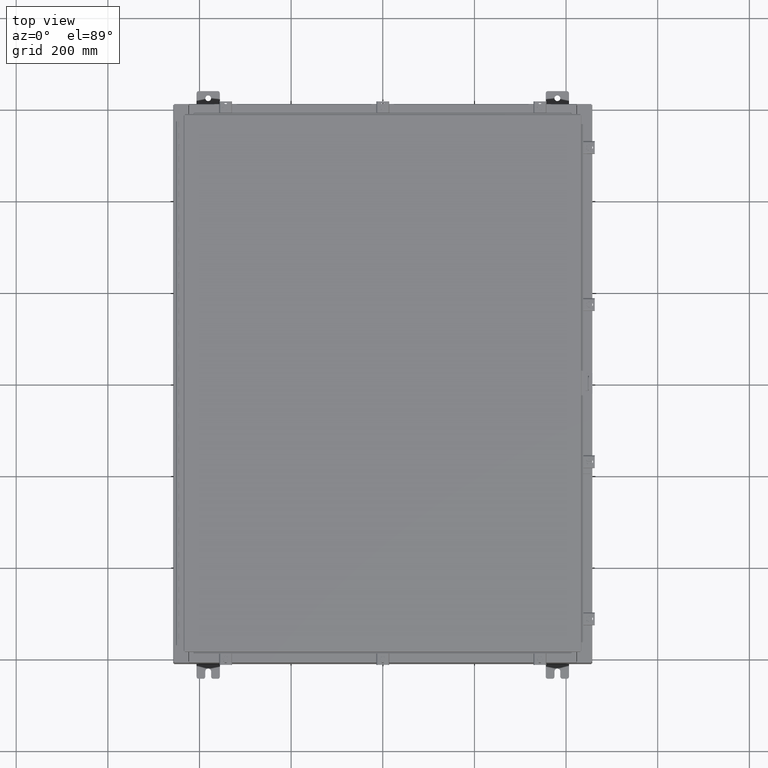
[diagram: clean part render]
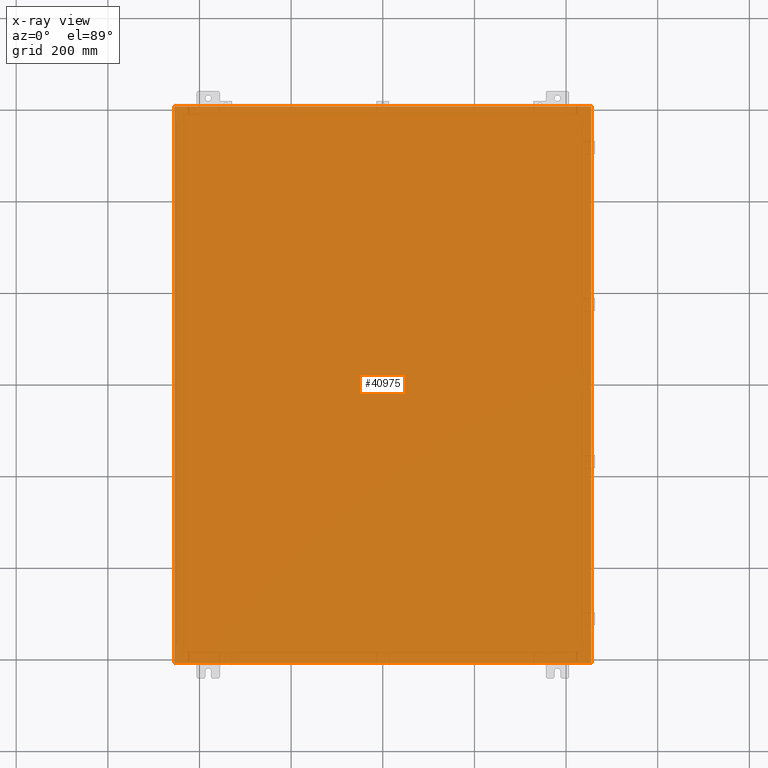
[diagram: x-ray — body ghosted, one internal face saturated and labeled with its STEP entity id]
A machine part, top view, then the same camera in x-ray: the body is ghosted and one INTERNAL B-rep face — a face not visible from any outside direction — is saturated and labeled: STEP entity #40975.
In plain terms, the highlighted planar face has unit normal (0, 0, -1).
Its self-contained STEP definition (entity closure, byte-faithful):
#805 = VECTOR ( 'NONE', #17746, 39.37007874015748100 ) ;
#1038 = VERTEX_POINT ( 'NONE', #12875 ) ;
#2107 = LINE ( 'NONE', #13534, #805 ) ;
#4765 = VERTEX_POINT ( 'NONE', #40581 ) ;
#5103 = CARTESIAN_POINT ( 'NONE',  ( -17.91230000000000500, -23.92529999999998900, 4.481938114605432000E-017 ) ) ;
#7347 = VERTEX_POINT ( 'NONE', #25794 ) ;
#9525 = CARTESIAN_POINT ( 'NONE',  ( -17.91230000000000500, -23.92529999999998600, 4.481938114605432000E-017 ) ) ;
#10195 = FACE_OUTER_BOUND ( 'NONE', #17727, .T. ) ;
#11599 = DIRECTION ( 'NONE',  ( 0.0000000000000000000, 0.0000000000000000000, -1.000000000000000000 ) ) ;
#12875 = CARTESIAN_POINT ( 'NONE',  ( -17.91230000000000500, 23.92529999999998900, 4.481938114605432000E-017 ) ) ;
#13463 = CARTESIAN_POINT ( 'NONE',  ( -18.00000000000000400, 23.92530000000000000, 0.0000000000000000000 ) ) ;
#13534 = CARTESIAN_POINT ( 'NONE',  ( 17.91229999999999500, 23.92529999999998900, 3.103208580302999200E-015 ) ) ;
#14136 = VECTOR ( 'NONE', #34222, 39.37007874015748100 ) ;
#15010 = VECTOR ( 'NONE', #23423, 39.37007874015748100 ) ;
#15604 = EDGE_CURVE ( 'NONE', #4765, #7347, #2107, .T. ) ;
#17682 = DIRECTION ( 'NONE',  ( -1.000000000000000000, -0.0000000000000000000, -0.0000000000000000000 ) ) ;
#17727 = EDGE_LOOP ( 'NONE', ( #41216, #49650, #39022, #21705 ) ) ;
#17746 = DIRECTION ( 'NONE',  ( -0.0000000000000000000, -1.000000000000000000, -8.208677865577646300E-017 ) ) ;
#21705 = ORIENTED_EDGE ( 'NONE', *, *, #47345, .T. ) ;
#23423 = DIRECTION ( 'NONE',  ( 1.000000000000000000, 1.214154663850783700E-016, 0.0000000000000000000 ) ) ;
#23903 = LINE ( 'NONE', #5103, #14136 ) ;
#24051 = AXIS2_PLACEMENT_3D ( 'NONE', #36551, #11599, #40751 ) ;
#25794 = CARTESIAN_POINT ( 'NONE',  ( 17.91229999999999500, -23.92529999999998900, -8.238229105893793900E-016 ) ) ;
#28159 = PLANE ( 'NONE',  #24051 ) ;
#29529 = VECTOR ( 'NONE', #17682, 39.37007874015748100 ) ;
#30835 = LINE ( 'NONE', #13463, #29529 ) ;
#32332 = EDGE_CURVE ( 'NONE', #46849, #1038, #23903, .T. ) ;
#34222 = DIRECTION ( 'NONE',  ( -0.0000000000000000000, 1.000000000000000000, -0.0000000000000000000 ) ) ;
#35991 = CARTESIAN_POINT ( 'NONE',  ( -18.00000000000000400, -23.92530000000000400, 0.0000000000000000000 ) ) ;
#36551 = CARTESIAN_POINT ( 'NONE',  ( 0.0000000000000000000, 0.0000000000000000000, 0.0000000000000000000 ) ) ;
#37962 = EDGE_CURVE ( 'NONE', #46849, #7347, #48240, .T. ) ;
#39022 = ORIENTED_EDGE ( 'NONE', *, *, #15604, .F. ) ;
#40581 = CARTESIAN_POINT ( 'NONE',  ( 17.91229999999999500, 23.92529999999998600, 3.103208580302999200E-015 ) ) ;
#40751 = DIRECTION ( 'NONE',  ( -1.000000000000000000, 0.0000000000000000000, -0.0000000000000000000 ) ) ;
#40975 = ADVANCED_FACE ( 'NONE', ( #10195 ), #28159, .F. ) ;
#41216 = ORIENTED_EDGE ( 'NONE', *, *, #32332, .F. ) ;
#46849 = VERTEX_POINT ( 'NONE', #9525 ) ;
#47345 = EDGE_CURVE ( 'NONE', #4765, #1038, #30835, .T. ) ;
#48240 = LINE ( 'NONE', #35991, #15010 ) ;
#49650 = ORIENTED_EDGE ( 'NONE', *, *, #37962, .T. ) ;